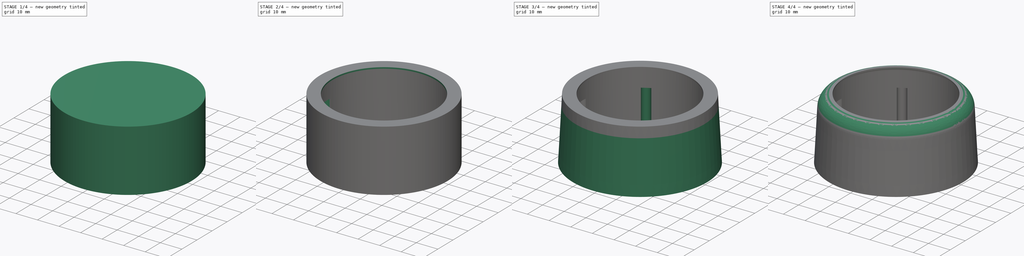
[diagram: build sequence overview — one tinted view per stage of 4, left to right]
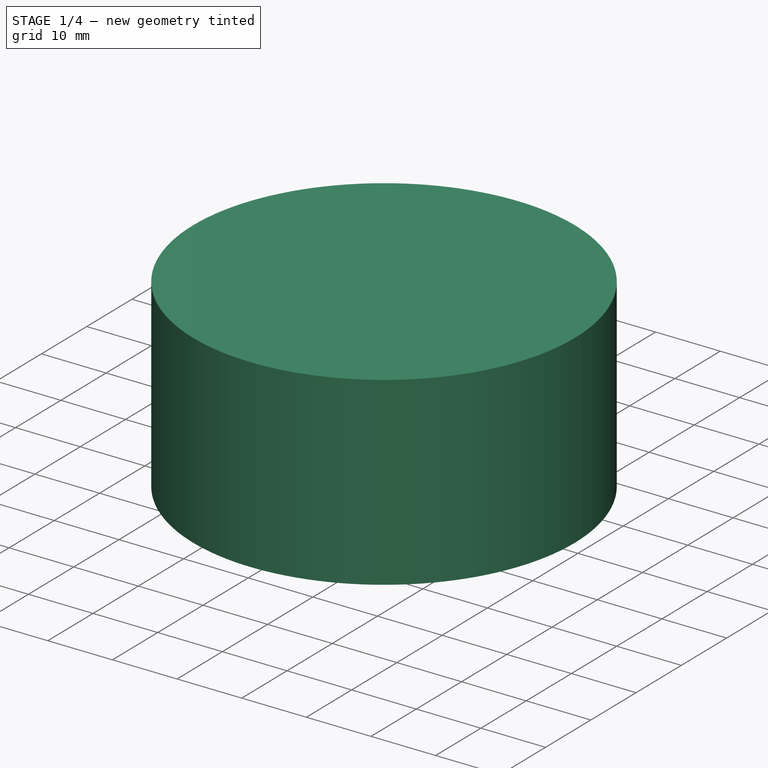
[diagram: stage 1 of 4 — iso view after this stage's code; geometry added in this stage tinted green]
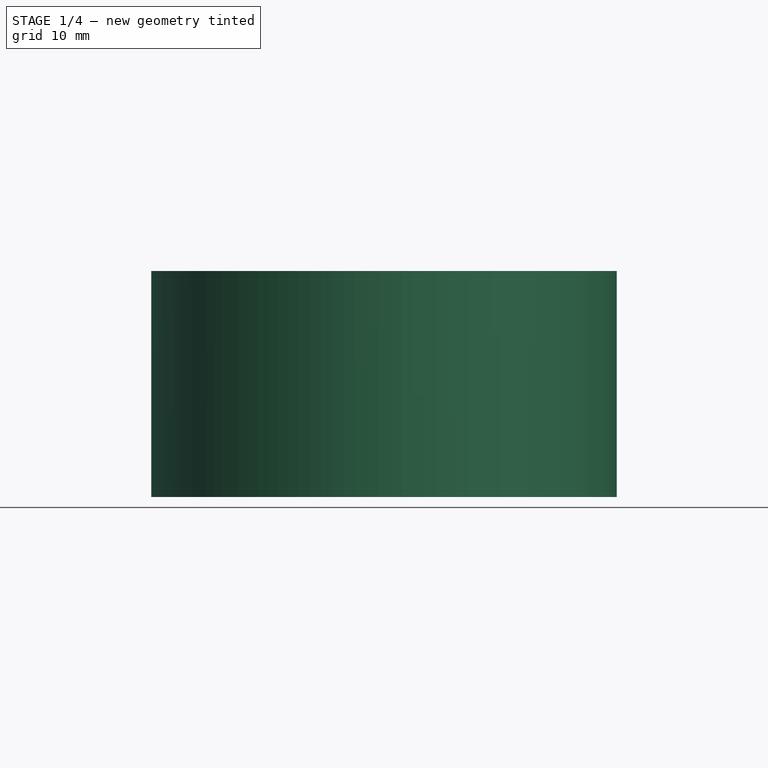
[diagram: stage 1 of 4 — front view after this stage's code; geometry added in this stage tinted green]
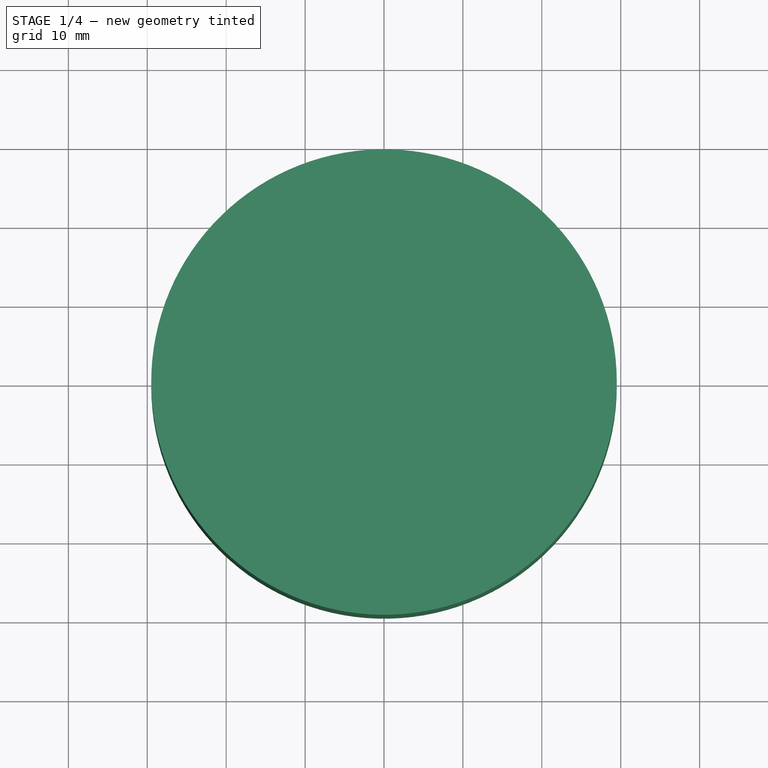
[diagram: stage 1 of 4 — top view after this stage's code; geometry added in this stage tinted green]
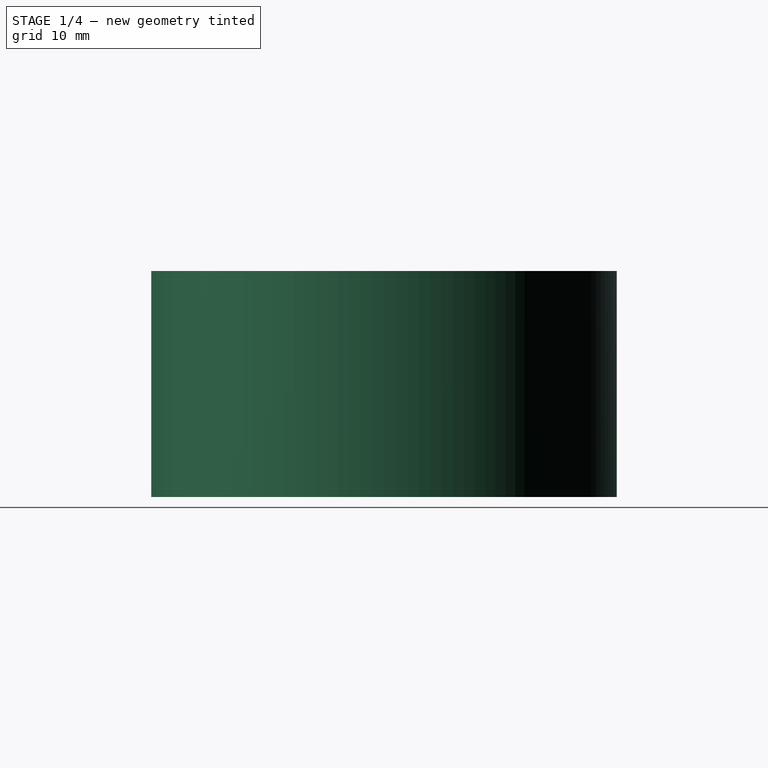
[diagram: stage 1 of 4 — right view after this stage's code; geometry added in this stage tinted green]
FCSTD DOCUMENT  (FreeCAD 0.20R29603 (Git))
Label: shell_up
License: Creative Commons Attribution-NonCommercial-ShareAlike
LicenseURL: http://creativecommons.org/licenses/by-nc-sa/4.0/
objects: Sketcher::SketchObject×5, PartDesign::Fillet×3, PartDesign::Pad×2, PartDesign::Pocket×2, PartDesign::PolarPattern×1, PartDesign::AdditiveLoft×1, PartDesign::Body×1
note: 23 computed .brp shape members not serialized (recipe doc carries the construction recipe); baked Part::Feature solids carry a one-line shape summary decoded from their .brp

FEATURE [Sketcher::SketchObject] Sketch
  FullyConstrained = true
  MapMode = 5
  Support = -> [XY_Plane]
  sketch-geometry (4):
    g0: Circle CenterX=0 CenterY=0 CenterZ=0 NormalX=0 NormalY=0 NormalZ=1 AngleXU=0 Radius=29.5
    g1: Circle CenterX=0 CenterY=0 CenterZ=0 NormalX=0 NormalY=0 NormalZ=1 AngleXU=0 Radius=26.5
    g2: GeomPoint X=0 Y=29.5 Z=0
    g3: GeomPoint X=0 Y=26.5 Z=0
  constraints (9):
    c: Coincident(g0,g-1)
    c: Diameter(g0) = 59
    c: PointOnObject(g2,g0)
    c: PointOnObject(g3,g1)
    c: DistanceY(g3,g2) = 3
    c: Vertical(g3,g2)
    c: Coincident(g0,g1)
    c: PointOnObject(g2,g-2)
    c: Diameter(g1) = 53
FEATURE [PartDesign::Pad] Pad
  Direction = (0,0,1)
  Length = 28
  Length2 = 10
  Profile = -> Sketch
  ReferenceAxis = -> Sketch [N_Axis]
  Reversed = true
  Type = 0
FEATURE [PartDesign::Pad] Pad001
  BaseFeature = -> Pad
  Direction = (0,0,1)
  Length = 0.65
  Length2 = 10
  Profile = -> Pad [Edge2]
  Type = 0
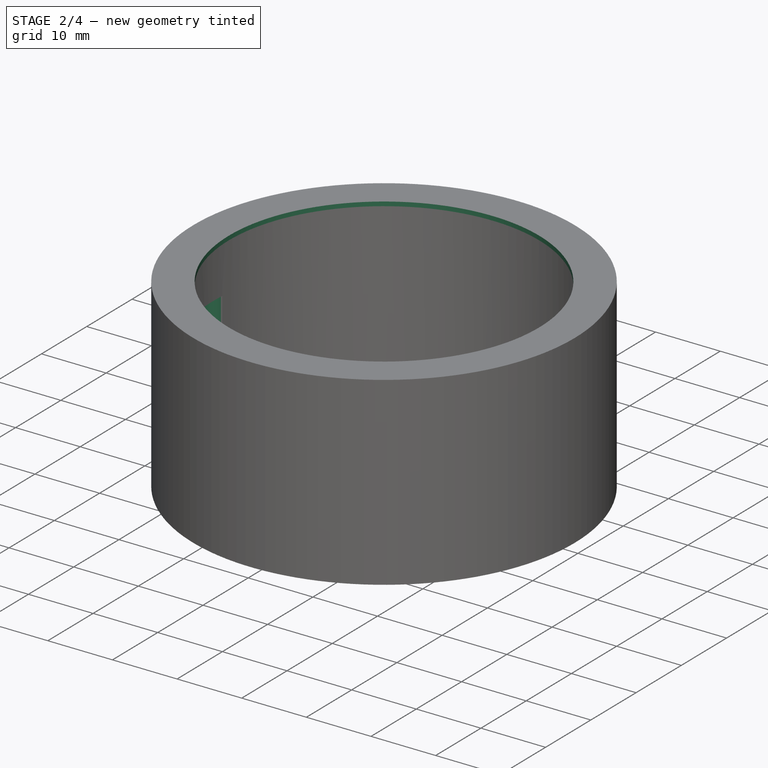
[diagram: stage 2 of 4 — iso view after this stage's code; geometry added in this stage tinted green]
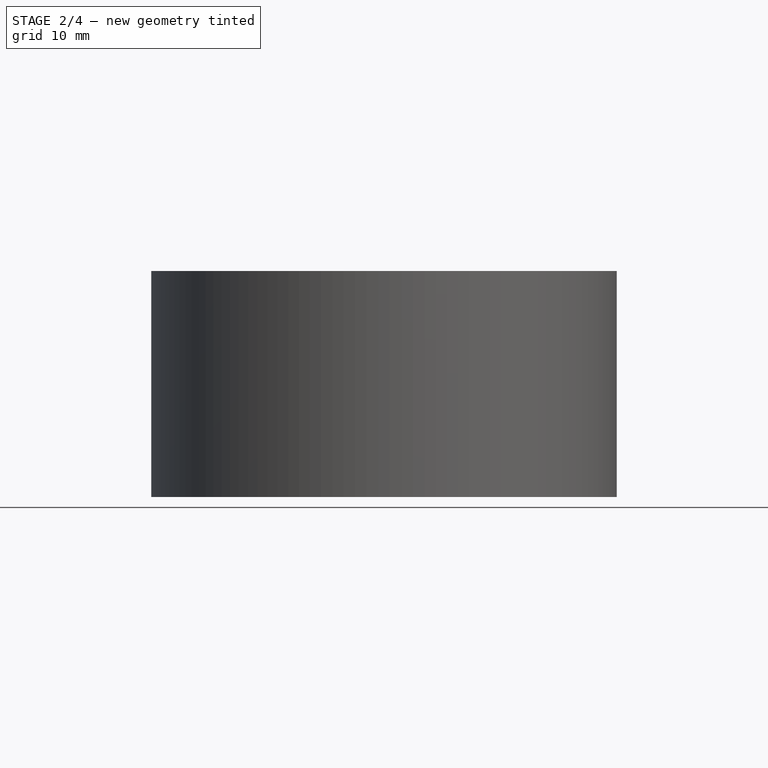
[diagram: stage 2 of 4 — front view after this stage's code; geometry added in this stage tinted green]
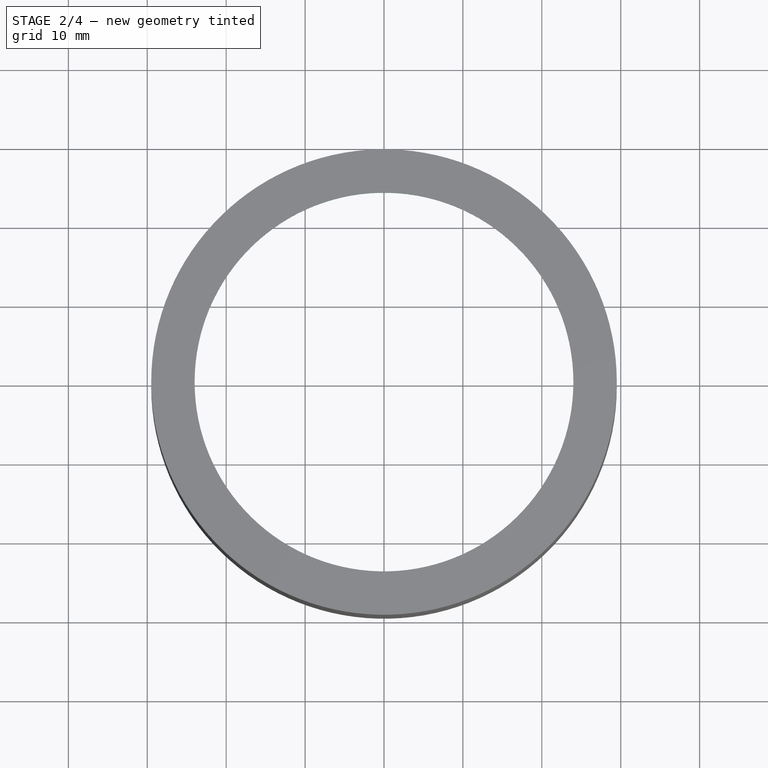
[diagram: stage 2 of 4 — top view after this stage's code; geometry added in this stage tinted green]
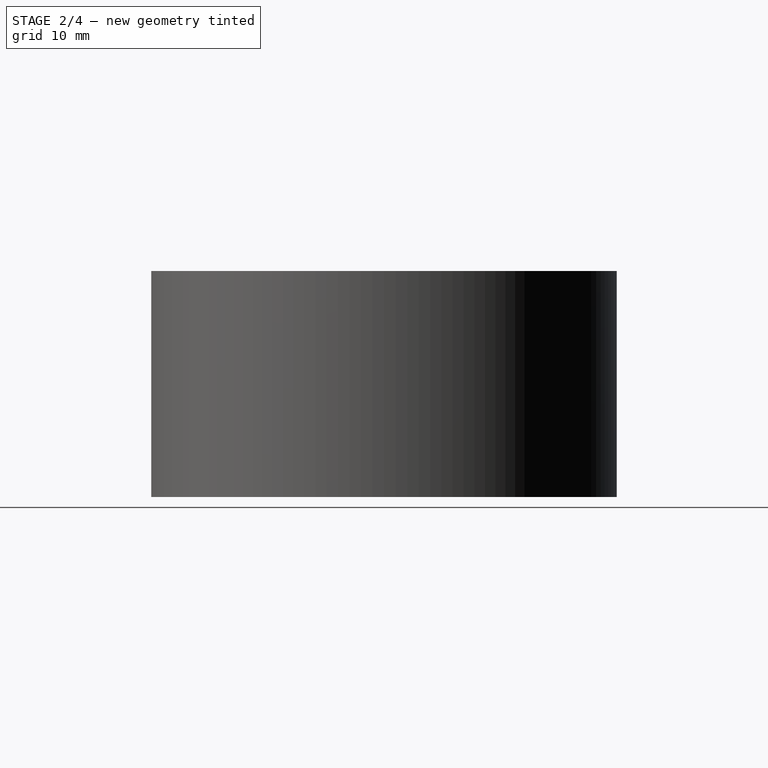
[diagram: stage 2 of 4 — right view after this stage's code; geometry added in this stage tinted green]
FEATURE [Sketcher::SketchObject] Sketch001
  FullyConstrained = true
  MapMode = 5
  Placement = pos=(0,0,0.65) rot=(0,0,1;0rad)
  Support = -> [Pad001]
  sketch-geometry (1):
    g0: Circle CenterX=0 CenterY=0 CenterZ=0 NormalX=0 NormalY=0 NormalZ=1 AngleXU=0 Radius=24
  constraints (2):
    c: Coincident(g0,g-1)
    c: Diameter(g0) = 48
FEATURE [PartDesign::Pocket] Pocket
  BaseFeature = -> Pad001
  Direction = (0,0,-1)
  Length = 0
  Length2 = 5
  Profile = -> Sketch001
  ReferenceAxis = -> Sketch001 [N_Axis]
  Type = 3
  UpToFace = -> Pad001 [Face6]
FEATURE [Sketcher::SketchObject] Sketch003
  AttachmentOffset = pos=(0,0,-9.2) rot=(0,0,1;0rad)
  FullyConstrained = false
  MapMode = 5
  Placement = pos=(0,0,-9.2) rot=(0,0,1;0rad)
  Support = -> [XY_Plane]
  sketch-geometry (2):
    g0: ArcOfCircle CenterX=-26.25 CenterY=0 CenterZ=0 NormalX=0 NormalY=0 NormalZ=1 AngleXU=0 Radius=2 StartAngle=1.53269 EndAngle=4.75049
    g1: ArcOfCircle CenterX=-5.64e-13 CenterY=-7.4e-15 CenterZ=0 NormalX=0 NormalY=0 NormalZ=1 AngleXU=0 Radius=26.25 StartAngle=3.06538 EndAngle=3.2178
  constraints (5):
    c: Diameter(g0) = 4
    c: PointOnObject(g0,g-1)
    c: Coincident(g1,g0)
    c: Coincident(g1,g0)
    c: PointOnObject(g0,g1)
FEATURE [PartDesign::Pocket] Pocket002
  BaseFeature = -> Pocket
  Direction = (0,0,-1)
  Length = 0
  Length2 = 5
  Profile = -> Sketch003
  ReferenceAxis = -> Sketch003 [N_Axis]
  Type = 3
  UpToFace = -> Pocket [Face3]
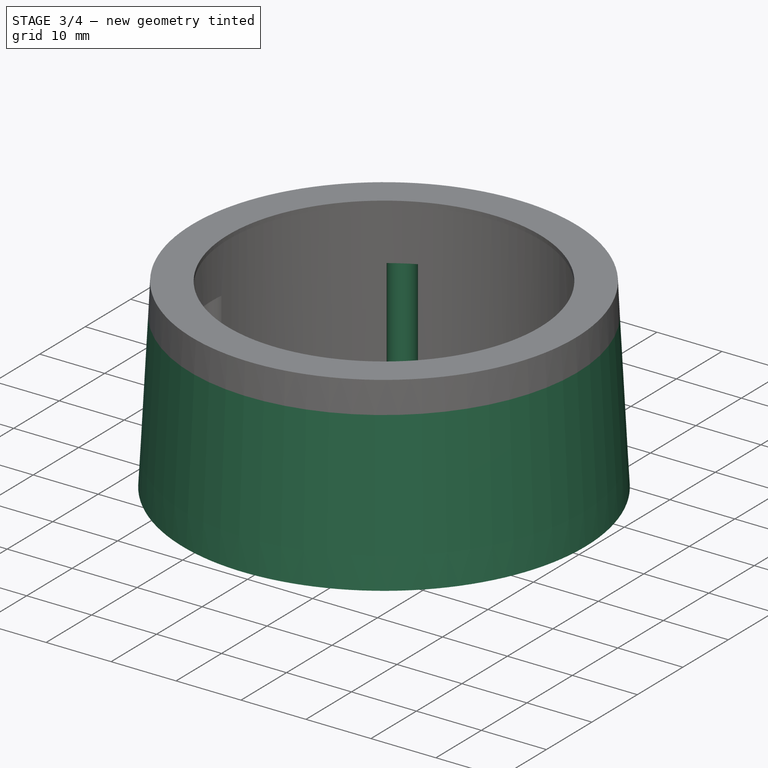
[diagram: stage 3 of 4 — iso view after this stage's code; geometry added in this stage tinted green]
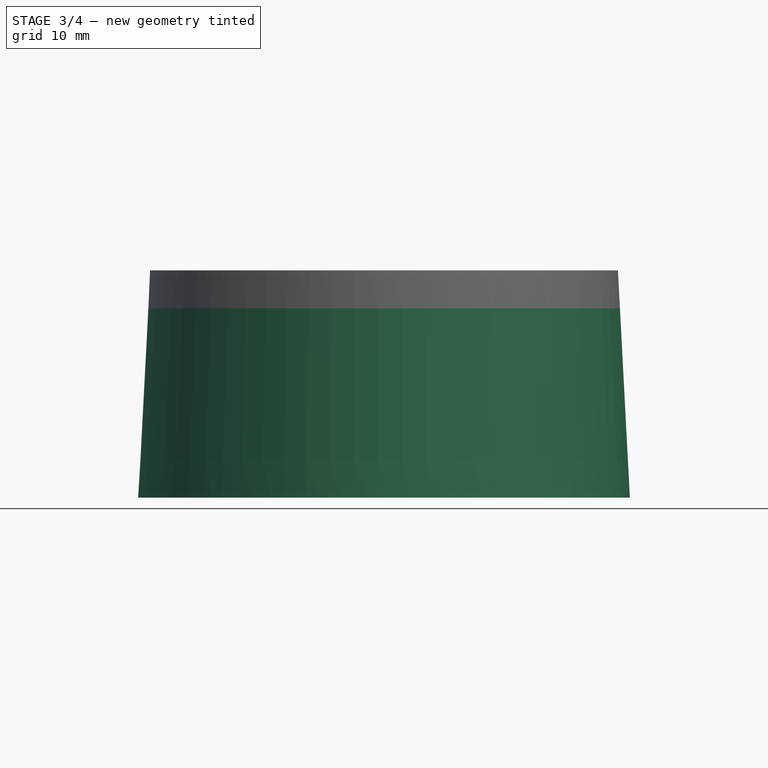
[diagram: stage 3 of 4 — front view after this stage's code; geometry added in this stage tinted green]
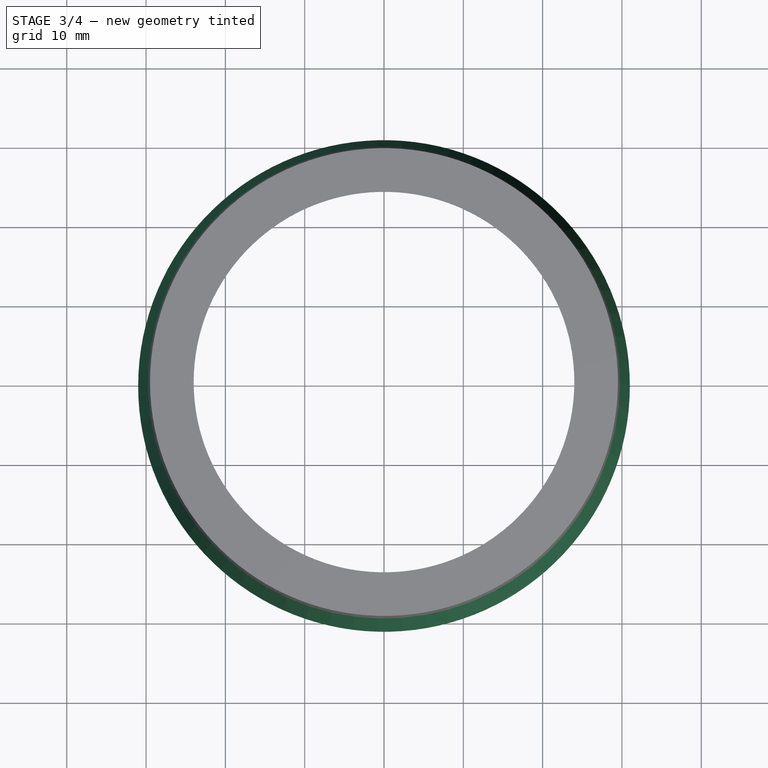
[diagram: stage 3 of 4 — top view after this stage's code; geometry added in this stage tinted green]
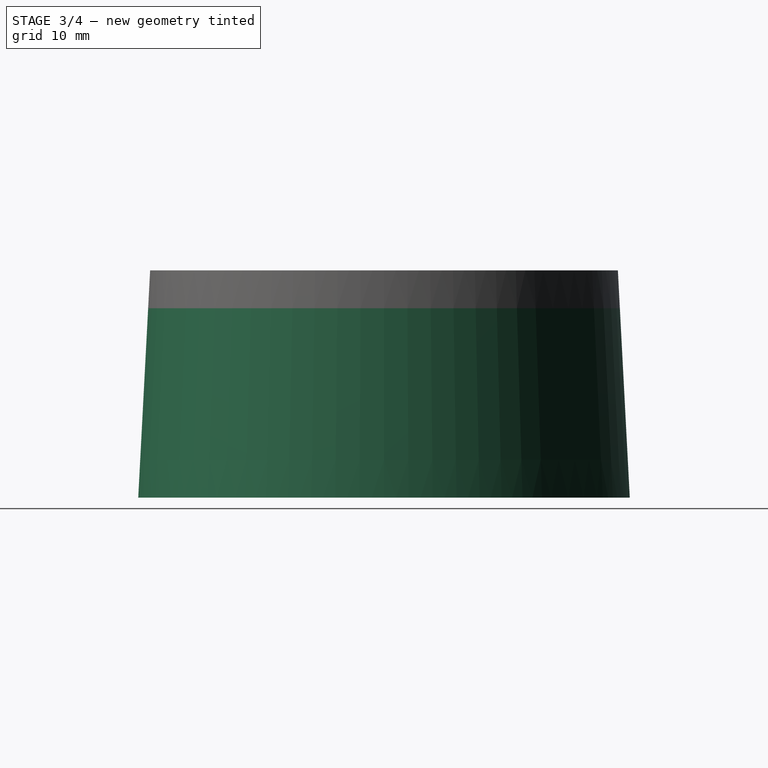
[diagram: stage 3 of 4 — right view after this stage's code; geometry added in this stage tinted green]
FEATURE [PartDesign::PolarPattern] PolarPattern
  Angle = 360
  Axis = -> Sketch003 [N_Axis]
  BaseFeature = -> Pocket002
  Occurrences = 6
  Originals = -> [Pocket002]
FEATURE [PartDesign::Fillet] Fillet001
  Base = -> PolarPattern [Edge9,Edge11,Edge13,Edge15,Edge7,Edge17]
  BaseFeature = -> PolarPattern
  Radius = 0.5
  SupportTransform = false
  UseAllEdges = false
FEATURE [Sketcher::SketchObject] Sketch004
  ExternalGeometry = -> [Fillet001]
  FullyConstrained = true
  MapMode = 5
  Placement = pos=(0,0,-28) rot=(1,0,0;3.14159rad)
  Support = -> [Fillet001]
  sketch-geometry (4):
    g0: Circle CenterX=0 CenterY=0 CenterZ=0 NormalX=0 NormalY=0 NormalZ=1 AngleXU=0 Radius=31
    g1: GeomPoint X=29.5 Y=0 Z=0
    g2: GeomPoint X=31 Y=0 Z=0
    g3: Circle CenterX=0 CenterY=0 CenterZ=0 NormalX=0 NormalY=0 NormalZ=1 AngleXU=0 Radius=29.5
  constraints (8):
    c: PointOnObject(g1,g-3)
    c: PointOnObject(g2,g0)
    c: PointOnObject(g2,g-1)
    c: PointOnObject(g1,g-1)
    c: DistanceX(g1,g2) = 1.5
    c: Coincident(g-3,g0)
    c: Coincident(g3,g0)
    c: Equal(g3,g-3)
FEATURE [Sketcher::SketchObject] Sketch005
  ExternalGeometry = -> [Fillet001]
  FullyConstrained = true
  MapMode = 5
  Placement = pos=(0,0,0.65) rot=(0,0,1;0rad)
  Support = -> [Fillet001]
  sketch-geometry (4):
    g0: Circle CenterX=0 CenterY=0 CenterZ=0 NormalX=0 NormalY=0 NormalZ=1 AngleXU=0 Radius=29.5
    g1: Circle CenterX=0 CenterY=0 CenterZ=0 NormalX=0 NormalY=0 NormalZ=1 AngleXU=0 Radius=28.5
    g2: GeomPoint X=0 Y=29.5 Z=0
    g3: GeomPoint X=0 Y=28.5 Z=0
  constraints (8):
    c: Coincident(g0,g-3)
    c: Equal(g0,g-3)
    c: Coincident(g1,g0)
    c: PointOnObject(g2,g-2)
    c: PointOnObject(g3,g1)
    c: PointOnObject(g3,g-2)
    c: PointOnObject(g2,g0)
    c: DistanceY(g3,g2) = 1
FEATURE [PartDesign::AdditiveLoft] AdditiveLoft
  BaseFeature = -> Fillet001
  Closed = false
  Profile = -> Sketch005
  Ruled = false
  Sections = -> [Sketch004]
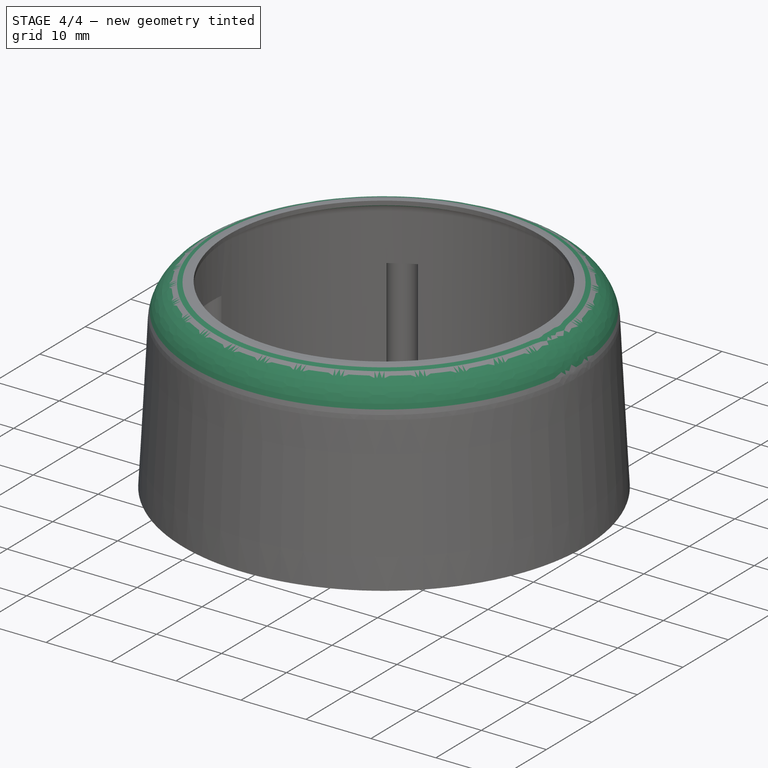
[diagram: stage 4 of 4 — iso view after this stage's code; geometry added in this stage tinted green]
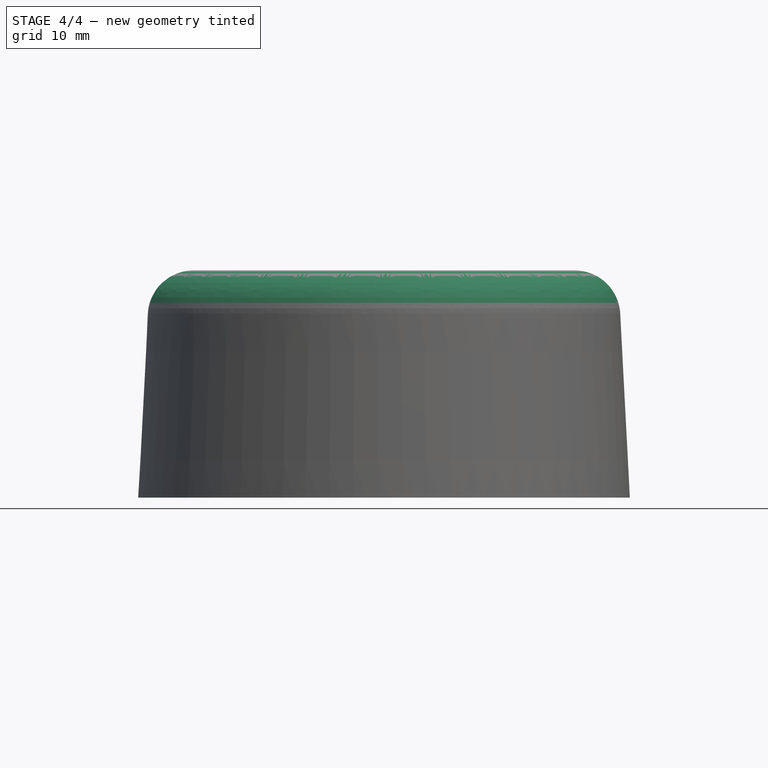
[diagram: stage 4 of 4 — front view after this stage's code; geometry added in this stage tinted green]
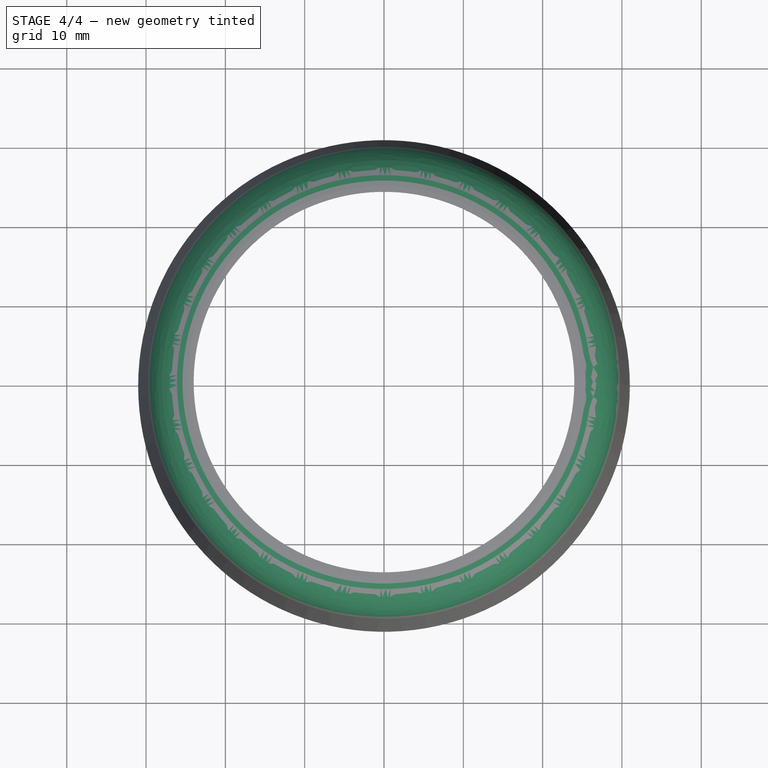
[diagram: stage 4 of 4 — top view after this stage's code; geometry added in this stage tinted green]
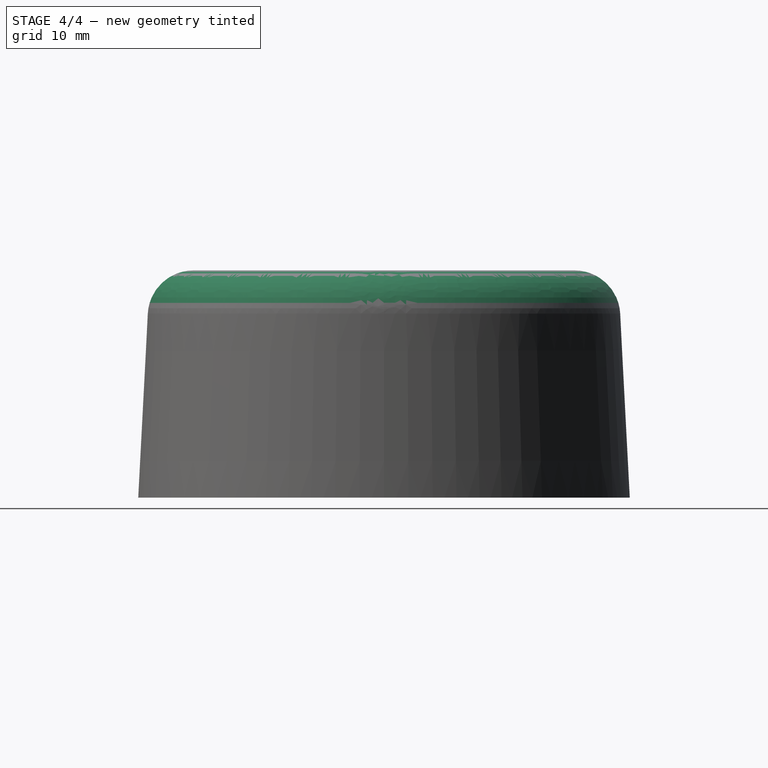
[diagram: stage 4 of 4 — right view after this stage's code; geometry added in this stage tinted green]
FEATURE [PartDesign::Fillet] Fillet
  Base = -> AdditiveLoft [Edge61]
  BaseFeature = -> AdditiveLoft
  Radius = 5.75
  SupportTransform = false
  UseAllEdges = false
FEATURE [PartDesign::Fillet] Fillet002
  Base = -> Fillet [Edge27]
  BaseFeature = -> Fillet
  Radius = 2
  SupportTransform = false
  UseAllEdges = false
FEATURE [PartDesign::Body] Body
  Group = -> [Sketch,Pad,Pad001,Sketch001,Pocket,Sketch003,Pocket002,PolarPattern,Fillet001,Sketch004,Sketch005,AdditiveLoft,Fillet,Fillet002]
  Origin = -> Origin
  Tip = -> Fillet002
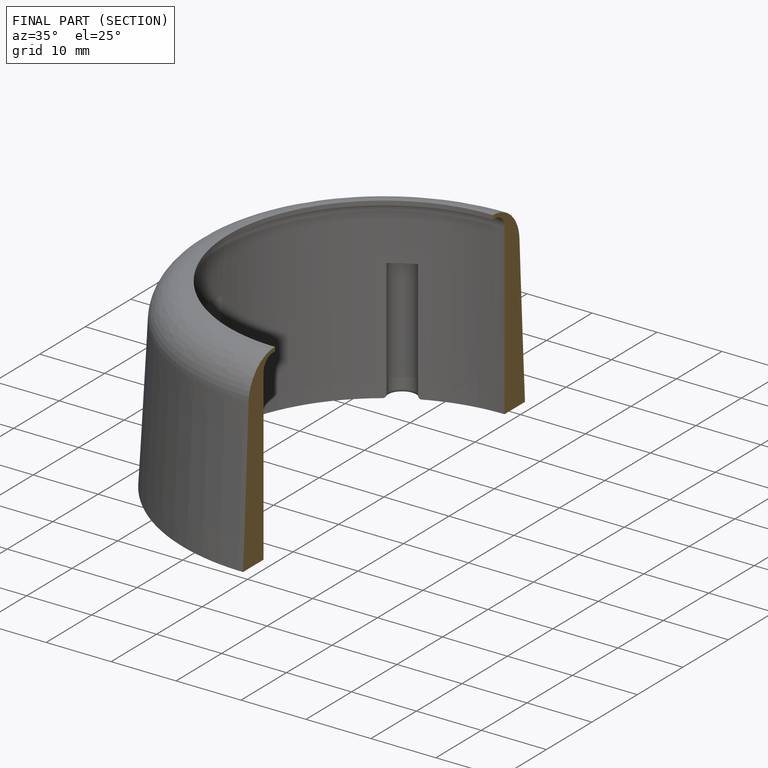
[diagram: finished part — half-section view (interior)]
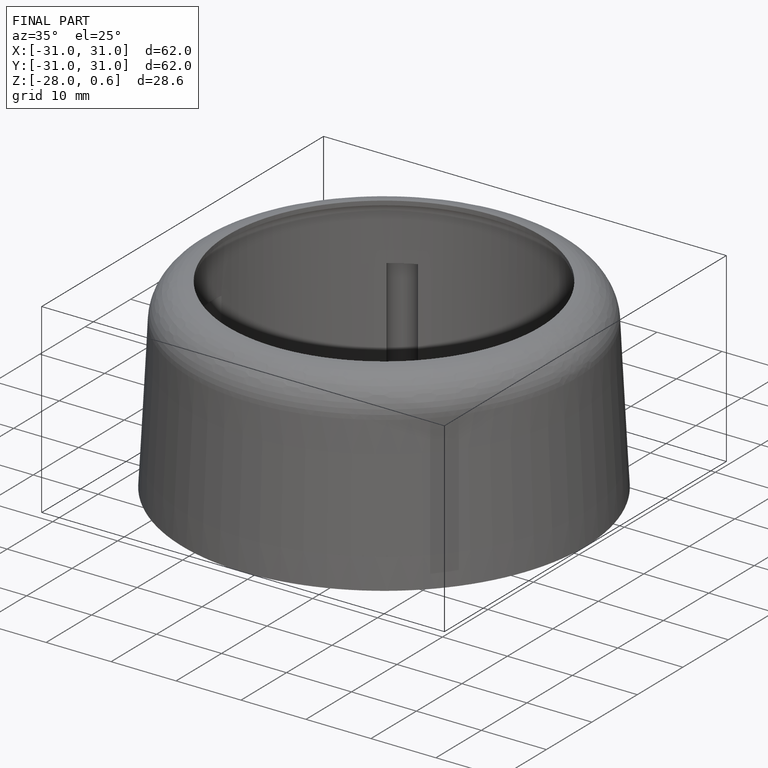
[diagram: finished part — iso view with bounding-box wireframe]
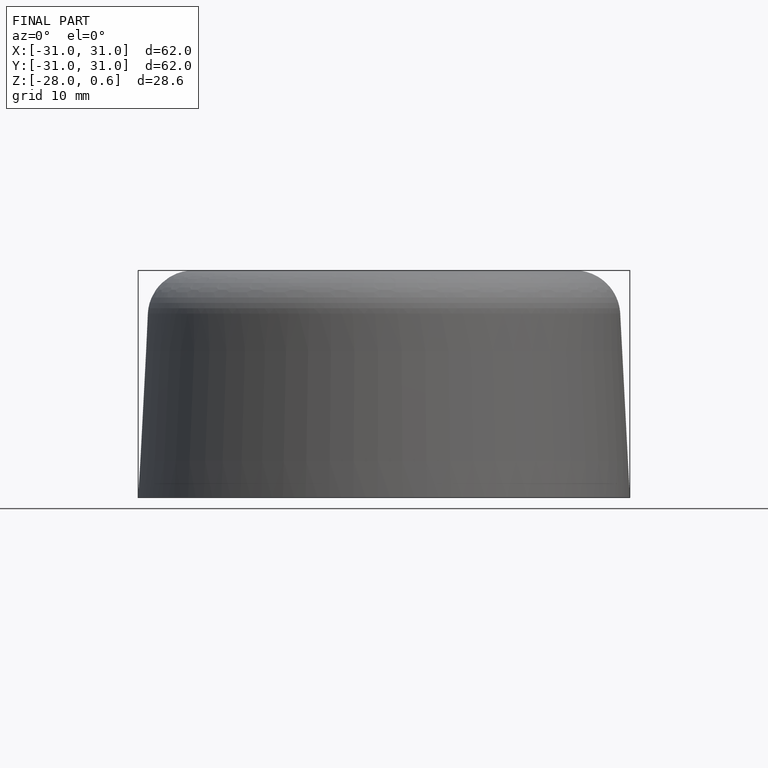
[diagram: finished part — front view with bounding-box wireframe]
